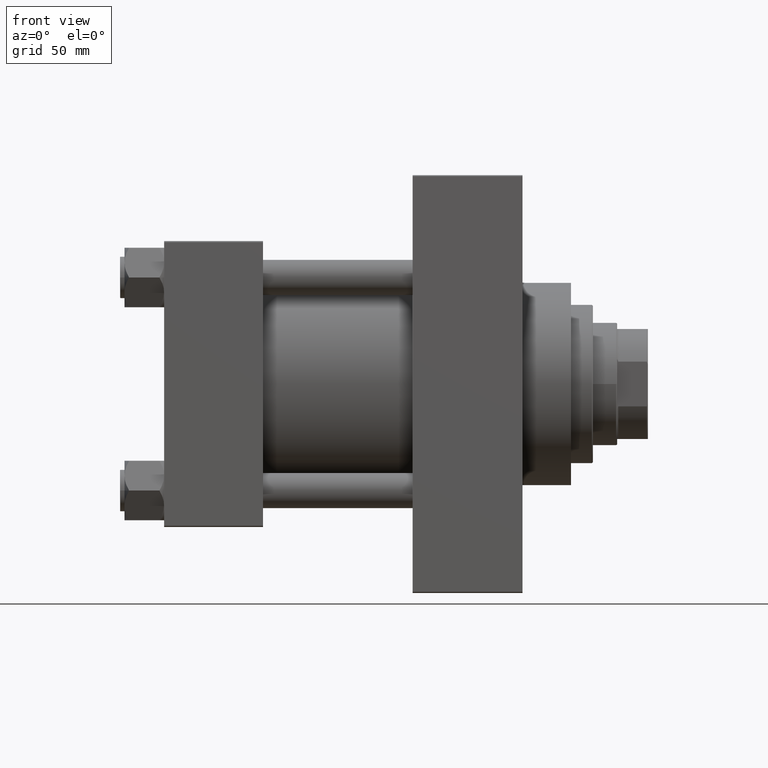
[diagram: clean part render]
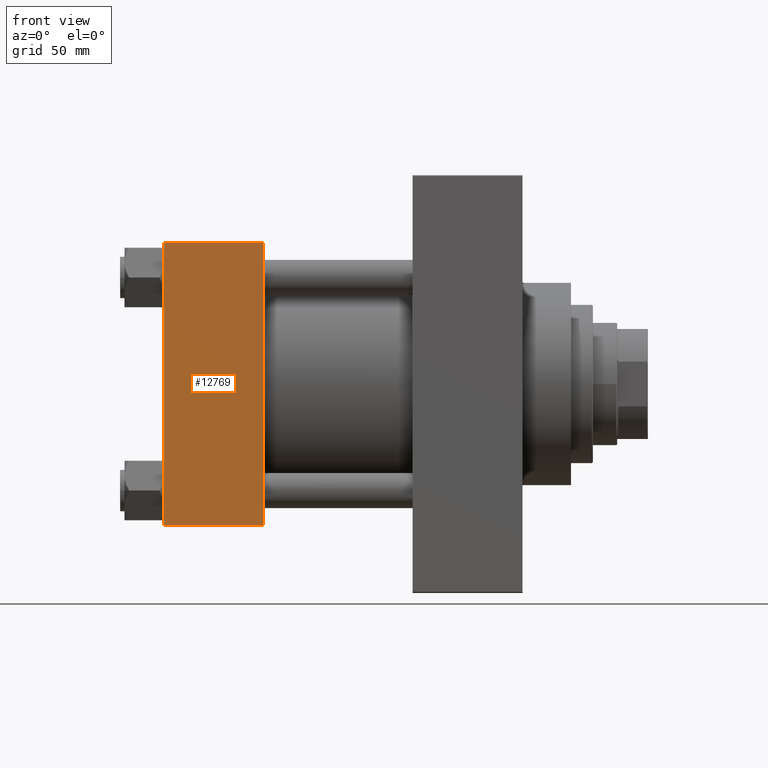
[diagram: same view with one face highlighted and labeled with its STEP entity id]
A machine part, front view. The second image highlights one B-rep face of the part: STEP entity #12769.
In plain terms, the highlighted planar face has unit normal (0, 1, 0).
Its self-contained STEP definition (entity closure, byte-faithful):
#301 = CARTESIAN_POINT ( 'NONE',  ( 45.00000000000000000, -65.00000000000000000, -64.49999999999991473 ) ) ;
#529 = LINE ( 'NONE', #301, #27851 ) ;
#2010 = DIRECTION ( 'NONE',  ( -1.000000000000000000, 0.000000000000000000, 0.000000000000000000 ) ) ;
#2303 = VECTOR ( 'NONE', #2010, 1000.000000000000000 ) ;
#5645 = CARTESIAN_POINT ( 'NONE',  ( 45.00000000000000000, -65.00000000000000000, 64.50000000000000000 ) ) ;
#7619 = AXIS2_PLACEMENT_3D ( 'NONE', #20606, #9011, #16503 ) ;
#9011 = DIRECTION ( 'NONE',  ( -0.000000000000000000, 1.000000000000000000, 0.000000000000000000 ) ) ;
#9440 = LINE ( 'NONE', #35757, #25347 ) ;
#10614 = ORIENTED_EDGE ( 'NONE', *, *, #21107, .T. ) ;
#11174 = DIRECTION ( 'NONE',  ( 1.000000000000000000, 0.000000000000000000, 0.000000000000000000 ) ) ;
#11917 = EDGE_CURVE ( 'NONE', #34204, #17504, #9440, .T. ) ;
#12769 = ADVANCED_FACE ( 'NONE', ( #45945 ), #20129, .F. ) ;
#13767 = CARTESIAN_POINT ( 'NONE',  ( 0.000000000000000000, -65.00000000000000000, -64.49999999999991473 ) ) ;
#14020 = DIRECTION ( 'NONE',  ( 0.000000000000000000, 0.000000000000000000, -1.000000000000000000 ) ) ;
#14291 = EDGE_CURVE ( 'NONE', #20894, #39728, #26374, .T. ) ;
#14957 = EDGE_CURVE ( 'NONE', #34204, #20894, #24002, .T. ) ;
#15261 = CARTESIAN_POINT ( 'NONE',  ( 0.000000000000000000, -65.00000000000000000, 65.00000000000000000 ) ) ;
#16503 = DIRECTION ( 'NONE',  ( 0.000000000000000000, -0.000000000000000000, 1.000000000000000000 ) ) ;
#17504 = VERTEX_POINT ( 'NONE', #32970 ) ;
#18332 = ORIENTED_EDGE ( 'NONE', *, *, #11917, .F. ) ;
#20129 = PLANE ( 'NONE',  #7619 ) ;
#20195 = EDGE_LOOP ( 'NONE', ( #43163, #10614, #18332, #23097 ) ) ;
#20606 = CARTESIAN_POINT ( 'NONE',  ( 45.00000000000000000, -65.00000000000000000, 65.00000000000000000 ) ) ;
#20894 = VERTEX_POINT ( 'NONE', #38026 ) ;
#21107 = EDGE_CURVE ( 'NONE', #39728, #17504, #529, .T. ) ;
#23097 = ORIENTED_EDGE ( 'NONE', *, *, #14957, .T. ) ;
#23854 = VECTOR ( 'NONE', #37250, 1000.000000000000000 ) ;
#24002 = LINE ( 'NONE', #5645, #2303 ) ;
#25347 = VECTOR ( 'NONE', #14020, 1000.000000000000000 ) ;
#26374 = LINE ( 'NONE', #15261, #23854 ) ;
#27851 = VECTOR ( 'NONE', #11174, 1000.000000000000000 ) ;
#32970 = CARTESIAN_POINT ( 'NONE',  ( 45.00000000000000000, -65.00000000000000000, -64.49999999999991473 ) ) ;
#34204 = VERTEX_POINT ( 'NONE', #36421 ) ;
#35757 = CARTESIAN_POINT ( 'NONE',  ( 45.00000000000000000, -65.00000000000000000, 65.00000000000000000 ) ) ;
#36421 = CARTESIAN_POINT ( 'NONE',  ( 45.00000000000000000, -65.00000000000000000, 64.50000000000000000 ) ) ;
#37250 = DIRECTION ( 'NONE',  ( 0.000000000000000000, 0.000000000000000000, -1.000000000000000000 ) ) ;
#38026 = CARTESIAN_POINT ( 'NONE',  ( 0.000000000000000000, -65.00000000000000000, 64.50000000000000000 ) ) ;
#39728 = VERTEX_POINT ( 'NONE', #13767 ) ;
#43163 = ORIENTED_EDGE ( 'NONE', *, *, #14291, .T. ) ;
#45945 = FACE_OUTER_BOUND ( 'NONE', #20195, .T. ) ;